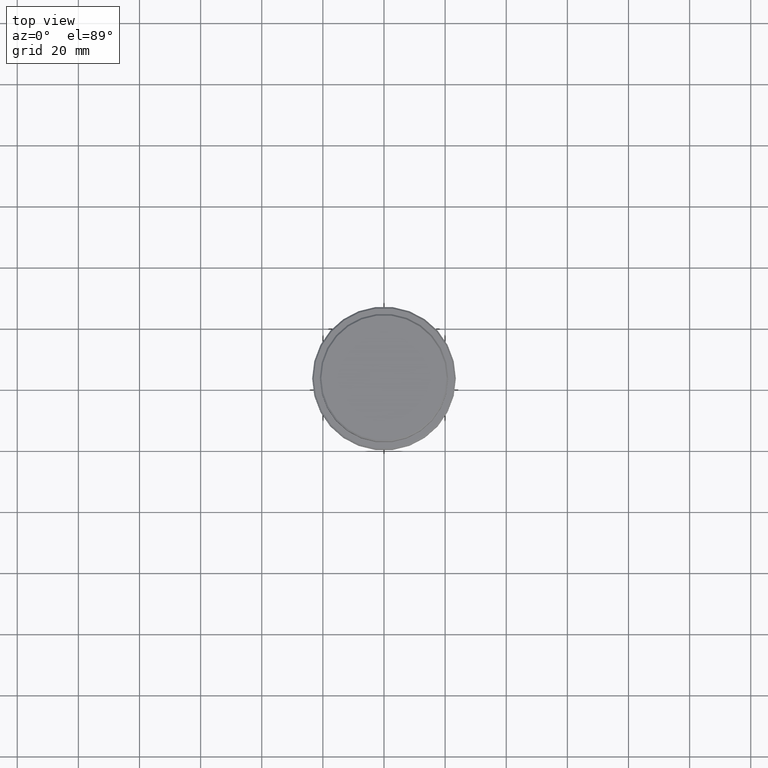
[diagram: clean part render]
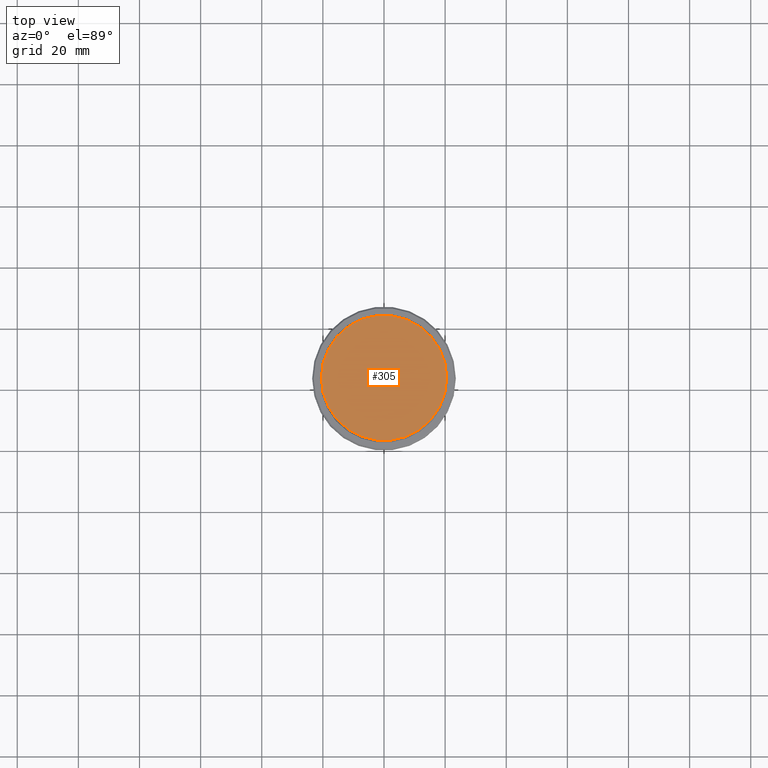
[diagram: same view with one face highlighted and labeled with its STEP entity id]
A machine part, top view. The second image highlights one B-rep face of the part: STEP entity #305.
In plain terms, the highlighted planar face has unit normal (0, -0, 1).
Its self-contained STEP definition (entity closure, byte-faithful):
#71 = FACE_OUTER_BOUND ( 'NONE', #1327, .T. ) ;
#111 = AXIS2_PLACEMENT_3D ( 'NONE', #1274, #284, #482 ) ;
#125 = ORIENTED_EDGE ( 'NONE', *, *, #1049, .T. ) ;
#284 = DIRECTION ( 'NONE',  ( 0.000000000000000000, -0.000000000000000000, 1.000000000000000000 ) ) ;
#305 = ADVANCED_FACE ( 'NONE', ( #71 ), #395, .T. ) ;
#338 = VERTEX_POINT ( 'NONE', #1172 ) ;
#395 = PLANE ( 'NONE',  #111 ) ;
#396 = DIRECTION ( 'NONE',  ( 1.000000000000000000, 0.000000000000000000, 0.000000000000000000 ) ) ;
#414 = VERTEX_POINT ( 'NONE', #1379 ) ;
#482 = DIRECTION ( 'NONE',  ( 1.000000000000000000, 0.000000000000000000, 0.000000000000000000 ) ) ;
#505 = CIRCLE ( 'NONE', #1096, 20.50000000000001776 ) ;
#698 = CARTESIAN_POINT ( 'NONE',  ( 0.000000000000000000, 0.000000000000000000, 0.000000000000000000 ) ) ;
#706 = CARTESIAN_POINT ( 'NONE',  ( 0.000000000000000000, 0.000000000000000000, 0.000000000000000000 ) ) ;
#747 = CIRCLE ( 'NONE', #1055, 20.50000000000001776 ) ;
#839 = ORIENTED_EDGE ( 'NONE', *, *, #1313, .T. ) ;
#894 = DIRECTION ( 'NONE',  ( 1.000000000000000000, 0.000000000000000000, 0.000000000000000000 ) ) ;
#914 = DIRECTION ( 'NONE',  ( -0.000000000000000000, -0.000000000000000000, 1.000000000000000000 ) ) ;
#1049 = EDGE_CURVE ( 'NONE', #414, #338, #747, .T. ) ;
#1055 = AXIS2_PLACEMENT_3D ( 'NONE', #698, #914, #894 ) ;
#1096 = AXIS2_PLACEMENT_3D ( 'NONE', #706, #1149, #396 ) ;
#1149 = DIRECTION ( 'NONE',  ( -0.000000000000000000, -0.000000000000000000, 1.000000000000000000 ) ) ;
#1172 = CARTESIAN_POINT ( 'NONE',  ( 20.50000000000001776, 2.541142108230758663E-15, 0.000000000000000000 ) ) ;
#1274 = CARTESIAN_POINT ( 'NONE',  ( 0.000000000000000000, 0.000000000000000000, 0.000000000000000000 ) ) ;
#1313 = EDGE_CURVE ( 'NONE', #338, #414, #505, .T. ) ;
#1327 = EDGE_LOOP ( 'NONE', ( #125, #839 ) ) ;
#1379 = CARTESIAN_POINT ( 'NONE',  ( -20.50000000000001776, 0.000000000000000000, 0.000000000000000000 ) ) ;